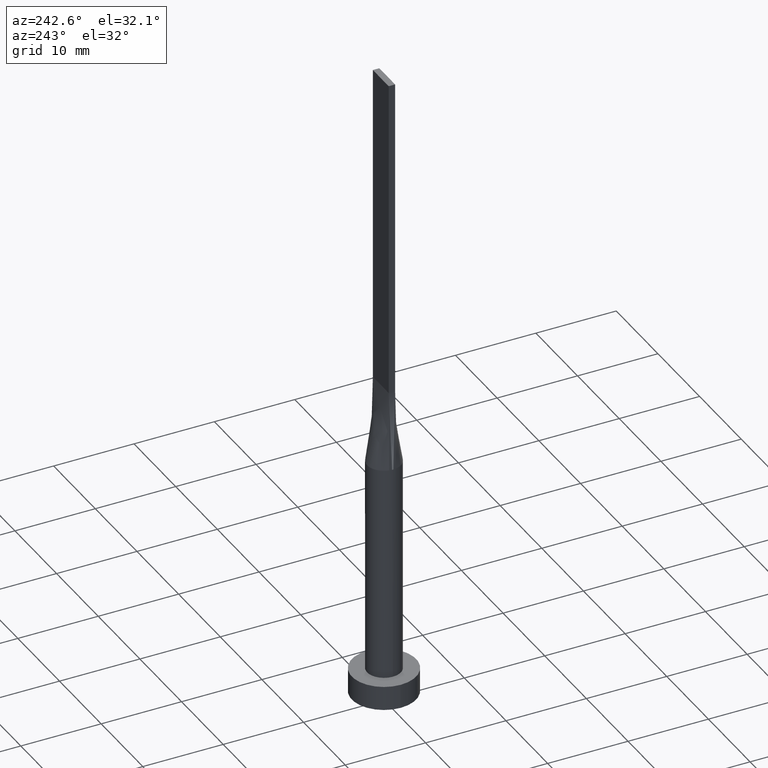
[diagram: clean part render]
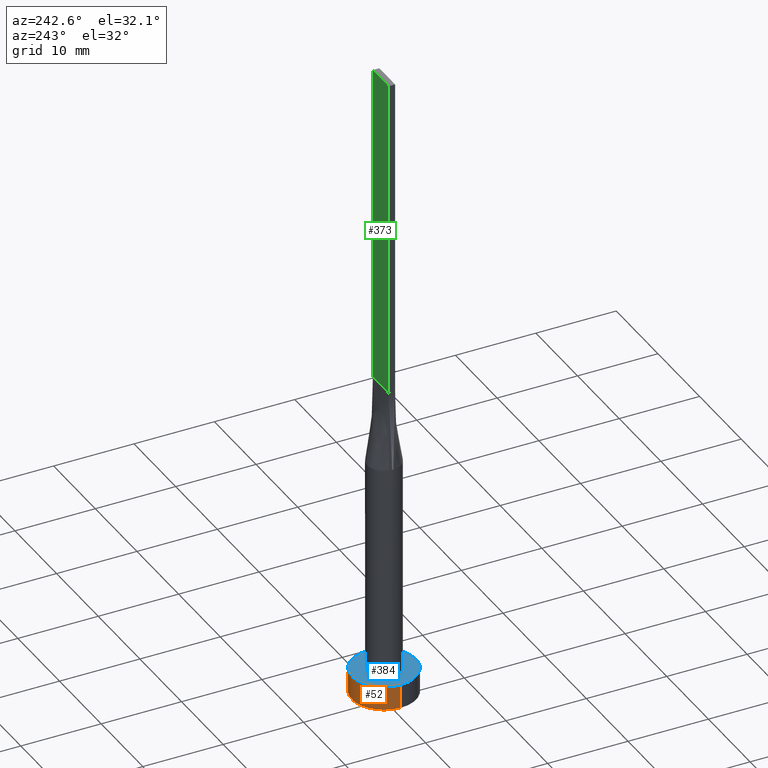
[diagram: same view with three faces highlighted in distinct colors, each labeled with its STEP entity id]
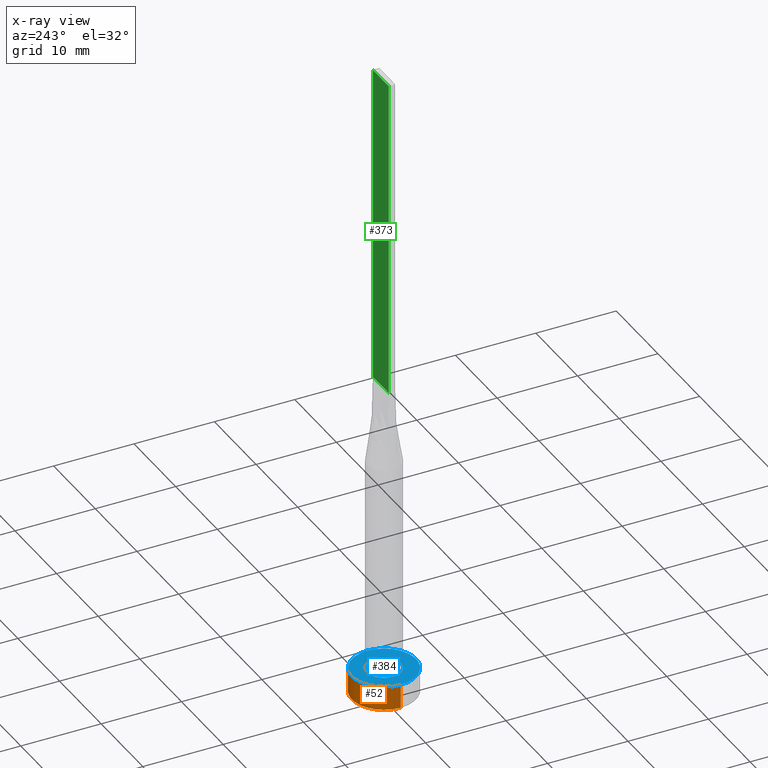
[diagram: x-ray of the same camera — body ghosted, the three highlighted faces saturated]
A machine part, auxiliary view with three faces highlighted in distinct colors.
The next image is the same camera in x-ray (body ghosted, the three faces saturated) — at least one of them is partly hidden behind the body in this view.
Their STEP definitions:

[orange] entity #52 — the highlighted cylindrical surface (edge-blend (fillet) strip) has radius 4 mm, axis along (-0, -0, -1).
#1 = DIRECTION ( 'NONE',  ( 0.000000000000000000, 0.000000000000000000, 1.000000000000000000 ) ) ;
#20 = VERTEX_POINT ( 'NONE', #274 ) ;
#43 = CARTESIAN_POINT ( 'NONE',  ( 0.000000000000000000, 0.000000000000000000, 3.000000000000000000 ) ) ;
#52 = ADVANCED_FACE ( 'NONE', ( #570 ), #577, .T. ) ;
#90 = CIRCLE ( 'NONE', #207, 4.000000000000000000 ) ;
#97 = CARTESIAN_POINT ( 'NONE',  ( 4.000000000000000000, 4.898587196589412829E-16, 3.000000000000000000 ) ) ;
#106 = AXIS2_PLACEMENT_3D ( 'NONE', #446, #1, #270 ) ;
#120 = VERTEX_POINT ( 'NONE', #336 ) ;
#129 = CARTESIAN_POINT ( 'NONE',  ( -4.000000000000000000, 0.000000000000000000, 3.000000000000000000 ) ) ;
#130 = AXIS2_PLACEMENT_3D ( 'NONE', #43, #532, #185 ) ;
#155 = LINE ( 'NONE', #129, #234 ) ;
#163 = ORIENTED_EDGE ( 'NONE', *, *, #575, .T. ) ;
#185 = DIRECTION ( 'NONE',  ( -1.000000000000000000, 0.000000000000000000, 0.000000000000000000 ) ) ;
#187 = ORIENTED_EDGE ( 'NONE', *, *, #253, .F. ) ;
#204 = EDGE_CURVE ( 'NONE', #120, #20, #272, .T. ) ;
#207 = AXIS2_PLACEMENT_3D ( 'NONE', #411, #492, #264 ) ;
#218 = CARTESIAN_POINT ( 'NONE',  ( 4.000000000000000000, 4.898587196589412829E-16, 3.000000000000000000 ) ) ;
#223 = DIRECTION ( 'NONE',  ( -0.000000000000000000, -0.000000000000000000, -1.000000000000000000 ) ) ;
#234 = VECTOR ( 'NONE', #223, 1000.000000000000000 ) ;
#237 = CARTESIAN_POINT ( 'NONE',  ( -4.000000000000000000, 0.000000000000000000, 3.000000000000000000 ) ) ;
#253 = EDGE_CURVE ( 'NONE', #443, #403, #90, .T. ) ;
#264 = DIRECTION ( 'NONE',  ( 1.000000000000000000, 0.000000000000000000, 0.000000000000000000 ) ) ;
#270 = DIRECTION ( 'NONE',  ( 1.000000000000000000, 0.000000000000000000, 0.000000000000000000 ) ) ;
#272 = CIRCLE ( 'NONE', #106, 4.000000000000000000 ) ;
#274 = CARTESIAN_POINT ( 'NONE',  ( -4.000000000000000000, 0.000000000000000000, 0.000000000000000000 ) ) ;
#336 = CARTESIAN_POINT ( 'NONE',  ( 4.000000000000000000, 4.898587196589412829E-16, 0.000000000000000000 ) ) ;
#337 = ORIENTED_EDGE ( 'NONE', *, *, #540, .F. ) ;
#392 = DIRECTION ( 'NONE',  ( -0.000000000000000000, -0.000000000000000000, -1.000000000000000000 ) ) ;
#403 = VERTEX_POINT ( 'NONE', #237 ) ;
#411 = CARTESIAN_POINT ( 'NONE',  ( 0.000000000000000000, 0.000000000000000000, 3.000000000000000000 ) ) ;
#443 = VERTEX_POINT ( 'NONE', #97 ) ;
#446 = CARTESIAN_POINT ( 'NONE',  ( 0.000000000000000000, 0.000000000000000000, 0.000000000000000000 ) ) ;
#477 = ORIENTED_EDGE ( 'NONE', *, *, #204, .T. ) ;
#489 = LINE ( 'NONE', #218, #551 ) ;
#492 = DIRECTION ( 'NONE',  ( 0.000000000000000000, 0.000000000000000000, 1.000000000000000000 ) ) ;
#532 = DIRECTION ( 'NONE',  ( -0.000000000000000000, -0.000000000000000000, -1.000000000000000000 ) ) ;
#537 = EDGE_LOOP ( 'NONE', ( #187, #163, #477, #337 ) ) ;
#540 = EDGE_CURVE ( 'NONE', #403, #20, #155, .T. ) ;
#551 = VECTOR ( 'NONE', #392, 1000.000000000000000 ) ;
#570 = FACE_OUTER_BOUND ( 'NONE', #537, .T. ) ;
#575 = EDGE_CURVE ( 'NONE', #443, #120, #489, .T. ) ;
#577 = CYLINDRICAL_SURFACE ( 'NONE', #130, 4.000000000000000000 ) ;

[blue] entity #384 — the highlighted planar face has unit normal (0, 0, 1).
#5 = CIRCLE ( 'NONE', #359, 2.100000000000000089 ) ;
#6 = PLANE ( 'NONE',  #107 ) ;
#9 = AXIS2_PLACEMENT_3D ( 'NONE', #535, #541, #233 ) ;
#16 = EDGE_CURVE ( 'NONE', #403, #443, #371, .T. ) ;
#25 = EDGE_LOOP ( 'NONE', ( #333, #578 ) ) ;
#31 = CARTESIAN_POINT ( 'NONE',  ( 0.000000000000000000, 0.000000000000000000, 3.000000000000000000 ) ) ;
#33 = CARTESIAN_POINT ( 'NONE',  ( 0.000000000000000000, 0.000000000000000000, 3.000000000000000000 ) ) ;
#35 = CARTESIAN_POINT ( 'NONE',  ( -2.100000000000000089, 0.000000000000000000, 3.000000000000000000 ) ) ;
#47 = DIRECTION ( 'NONE',  ( 1.000000000000000000, 0.000000000000000000, -0.000000000000000000 ) ) ;
#50 = CIRCLE ( 'NONE', #9, 2.100000000000000089 ) ;
#74 = DIRECTION ( 'NONE',  ( 0.000000000000000000, 0.000000000000000000, 1.000000000000000000 ) ) ;
#89 = DIRECTION ( 'NONE',  ( 1.000000000000000000, 0.000000000000000000, 0.000000000000000000 ) ) ;
#90 = CIRCLE ( 'NONE', #207, 4.000000000000000000 ) ;
#97 = CARTESIAN_POINT ( 'NONE',  ( 4.000000000000000000, 4.898587196589412829E-16, 3.000000000000000000 ) ) ;
#107 = AXIS2_PLACEMENT_3D ( 'NONE', #457, #242, #47 ) ;
#147 = FACE_BOUND ( 'NONE', #25, .T. ) ;
#207 = AXIS2_PLACEMENT_3D ( 'NONE', #411, #492, #264 ) ;
#233 = DIRECTION ( 'NONE',  ( 1.000000000000000000, 0.000000000000000000, 0.000000000000000000 ) ) ;
#235 = EDGE_CURVE ( 'NONE', #252, #297, #50, .T. ) ;
#237 = CARTESIAN_POINT ( 'NONE',  ( -4.000000000000000000, 0.000000000000000000, 3.000000000000000000 ) ) ;
#242 = DIRECTION ( 'NONE',  ( 0.000000000000000000, 0.000000000000000000, 1.000000000000000000 ) ) ;
#252 = VERTEX_POINT ( 'NONE', #35 ) ;
#253 = EDGE_CURVE ( 'NONE', #443, #403, #90, .T. ) ;
#264 = DIRECTION ( 'NONE',  ( 1.000000000000000000, 0.000000000000000000, 0.000000000000000000 ) ) ;
#297 = VERTEX_POINT ( 'NONE', #569 ) ;
#333 = ORIENTED_EDGE ( 'NONE', *, *, #235, .F. ) ;
#335 = ORIENTED_EDGE ( 'NONE', *, *, #16, .T. ) ;
#359 = AXIS2_PLACEMENT_3D ( 'NONE', #31, #74, #530 ) ;
#371 = CIRCLE ( 'NONE', #458, 4.000000000000000000 ) ;
#384 = ADVANCED_FACE ( 'NONE', ( #147, #415 ), #6, .T. ) ;
#396 = ORIENTED_EDGE ( 'NONE', *, *, #253, .T. ) ;
#403 = VERTEX_POINT ( 'NONE', #237 ) ;
#411 = CARTESIAN_POINT ( 'NONE',  ( 0.000000000000000000, 0.000000000000000000, 3.000000000000000000 ) ) ;
#415 = FACE_OUTER_BOUND ( 'NONE', #439, .T. ) ;
#439 = EDGE_LOOP ( 'NONE', ( #335, #396 ) ) ;
#443 = VERTEX_POINT ( 'NONE', #97 ) ;
#451 = DIRECTION ( 'NONE',  ( 0.000000000000000000, 0.000000000000000000, 1.000000000000000000 ) ) ;
#457 = CARTESIAN_POINT ( 'NONE',  ( 0.000000000000000000, 0.000000000000000000, 3.000000000000000000 ) ) ;
#458 = AXIS2_PLACEMENT_3D ( 'NONE', #33, #451, #89 ) ;
#492 = DIRECTION ( 'NONE',  ( 0.000000000000000000, 0.000000000000000000, 1.000000000000000000 ) ) ;
#530 = DIRECTION ( 'NONE',  ( 1.000000000000000000, 0.000000000000000000, 0.000000000000000000 ) ) ;
#535 = CARTESIAN_POINT ( 'NONE',  ( 0.000000000000000000, 0.000000000000000000, 3.000000000000000000 ) ) ;
#541 = DIRECTION ( 'NONE',  ( 0.000000000000000000, 0.000000000000000000, 1.000000000000000000 ) ) ;
#568 = EDGE_CURVE ( 'NONE', #297, #252, #5, .T. ) ;
#569 = CARTESIAN_POINT ( 'NONE',  ( 2.100000000000000089, 2.571758278209441957E-16, 3.000000000000000000 ) ) ;
#578 = ORIENTED_EDGE ( 'NONE', *, *, #568, .F. ) ;

[green] entity #373 — the highlighted planar face has unit normal (0, -1, 0).
#14 = CARTESIAN_POINT ( 'NONE',  ( -1.899999999999999689, 0.4000000000000002442, 40.00000000000000000 ) ) ;
#29 = CARTESIAN_POINT ( 'NONE',  ( 1.899999999999999689, 0.4000000000000002442, 80.00000000000000000 ) ) ;
#40 = VECTOR ( 'NONE', #557, 1000.000000000000000 ) ;
#65 = ORIENTED_EDGE ( 'NONE', *, *, #137, .T. ) ;
#92 = PLANE ( 'NONE',  #96 ) ;
#96 = AXIS2_PLACEMENT_3D ( 'NONE', #500, #547, #278 ) ;
#109 = EDGE_LOOP ( 'NONE', ( #471, #386, #523, #65 ) ) ;
#119 = DIRECTION ( 'NONE',  ( -0.000000000000000000, -0.000000000000000000, -1.000000000000000000 ) ) ;
#137 = EDGE_CURVE ( 'NONE', #520, #159, #559, .T. ) ;
#140 = CARTESIAN_POINT ( 'NONE',  ( -1.899999999999999689, 0.4000000000000002442, 40.00000000000000000 ) ) ;
#145 = CARTESIAN_POINT ( 'NONE',  ( 1.899999999999999689, 0.4000000000000002442, 80.00000000000000000 ) ) ;
#149 = EDGE_CURVE ( 'NONE', #520, #556, #430, .T. ) ;
#156 = VECTOR ( 'NONE', #119, 1000.000000000000000 ) ;
#159 = VERTEX_POINT ( 'NONE', #260 ) ;
#168 = EDGE_CURVE ( 'NONE', #159, #257, #442, .T. ) ;
#238 = VECTOR ( 'NONE', #555, 1000.000000000000000 ) ;
#257 = VERTEX_POINT ( 'NONE', #140 ) ;
#260 = CARTESIAN_POINT ( 'NONE',  ( 1.899999999999999689, 0.4000000000000002442, 40.00000000000000000 ) ) ;
#278 = DIRECTION ( 'NONE',  ( 0.000000000000000000, -0.000000000000000000, -1.000000000000000000 ) ) ;
#302 = CARTESIAN_POINT ( 'NONE',  ( -1.899999999999999689, 0.4000000000000002442, 80.00000000000000000 ) ) ;
#323 = FACE_OUTER_BOUND ( 'NONE', #109, .T. ) ;
#373 = ADVANCED_FACE ( 'NONE', ( #323 ), #92, .F. ) ;
#386 = ORIENTED_EDGE ( 'NONE', *, *, #521, .F. ) ;
#430 = LINE ( 'NONE', #519, #40 ) ;
#442 = LINE ( 'NONE', #14, #238 ) ;
#461 = LINE ( 'NONE', #464, #482 ) ;
#464 = CARTESIAN_POINT ( 'NONE',  ( -1.899999999999999689, 0.4000000000000002442, 80.00000000000000000 ) ) ;
#470 = DIRECTION ( 'NONE',  ( -0.000000000000000000, -0.000000000000000000, -1.000000000000000000 ) ) ;
#471 = ORIENTED_EDGE ( 'NONE', *, *, #168, .T. ) ;
#482 = VECTOR ( 'NONE', #470, 1000.000000000000000 ) ;
#500 = CARTESIAN_POINT ( 'NONE',  ( 1.899999999999999689, 0.4000000000000002442, 80.00000000000000000 ) ) ;
#519 = CARTESIAN_POINT ( 'NONE',  ( 1.899999999999999689, 0.4000000000000002442, 80.00000000000000000 ) ) ;
#520 = VERTEX_POINT ( 'NONE', #145 ) ;
#521 = EDGE_CURVE ( 'NONE', #556, #257, #461, .T. ) ;
#523 = ORIENTED_EDGE ( 'NONE', *, *, #149, .F. ) ;
#547 = DIRECTION ( 'NONE',  ( 0.000000000000000000, -1.000000000000000000, 0.000000000000000000 ) ) ;
#555 = DIRECTION ( 'NONE',  ( -1.000000000000000000, -0.000000000000000000, -0.000000000000000000 ) ) ;
#556 = VERTEX_POINT ( 'NONE', #302 ) ;
#557 = DIRECTION ( 'NONE',  ( -1.000000000000000000, 0.000000000000000000, 0.000000000000000000 ) ) ;
#559 = LINE ( 'NONE', #29, #156 ) ;